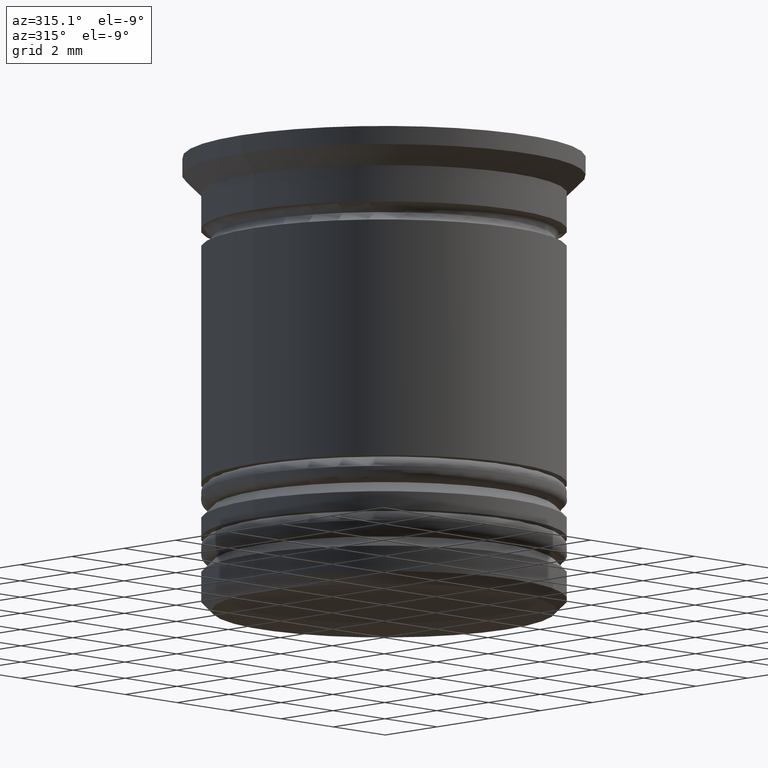
[diagram: clean part render]
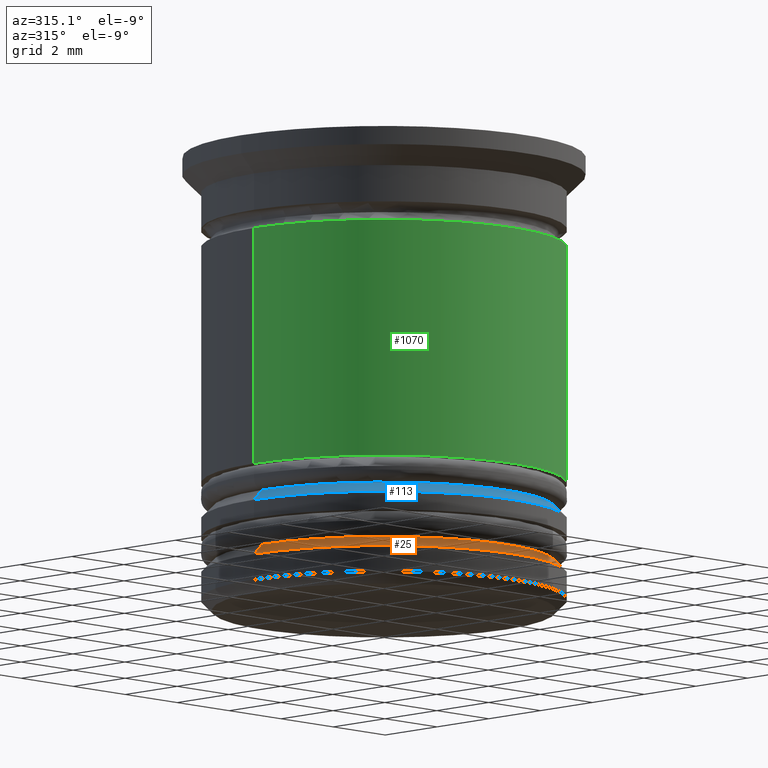
[diagram: same view with three faces highlighted in distinct colors, each labeled with its STEP entity id]
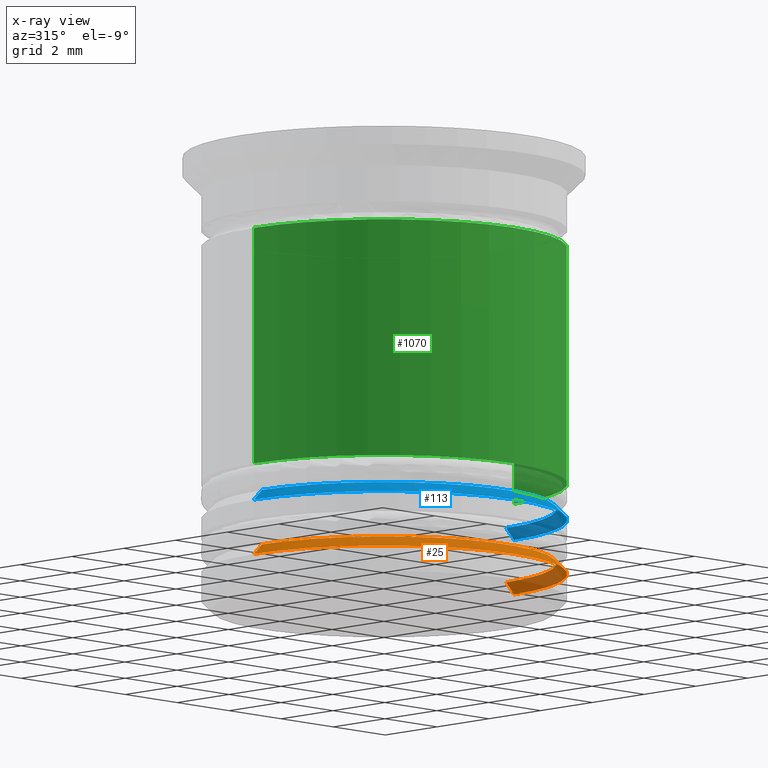
[diagram: x-ray of the same camera — body ghosted, the three highlighted faces saturated]
A machine part, auxiliary view with three faces highlighted in distinct colors.
The next image is the same camera in x-ray (body ghosted, the three faces saturated) — at least one of them is partly hidden behind the body in this view.
Their STEP definitions:

[orange] entity #25 — the highlighted conical surface has half-angle 45 deg.
#25 = ADVANCED_FACE ( 'NONE', ( #674 ), #1564, .T. ) ;
#48 = CARTESIAN_POINT ( 'NONE',  ( -4.700000000000001066, 5.755839955992560641E-16, -11.20000000000000817 ) ) ;
#49 = VERTEX_POINT ( 'NONE', #980 ) ;
#80 = CARTESIAN_POINT ( 'NONE',  ( 4.700000000000001066, 0.000000000000000000, -11.20000000000000817 ) ) ;
#92 = CARTESIAN_POINT ( 'NONE',  ( 4.499999999999992006, 5.510910596163078709E-16, -11.00000000000000178 ) ) ;
#95 = EDGE_CURVE ( 'NONE', #659, #49, #705, .T. ) ;
#129 = LINE ( 'NONE', #92, #1753 ) ;
#257 = EDGE_CURVE ( 'NONE', #659, #1270, #1630, .T. ) ;
#277 = DIRECTION ( 'NONE',  ( 0.7071067811865512365, 8.659560562354978464E-17, -0.7071067811865439090 ) ) ;
#287 = DIRECTION ( 'NONE',  ( -1.000000000000000000, 0.000000000000000000, 0.000000000000000000 ) ) ;
#356 = EDGE_LOOP ( 'NONE', ( #1909, #1327, #462, #1624 ) ) ;
#375 = CARTESIAN_POINT ( 'NONE',  ( 0.000000000000000000, 0.000000000000000000, -11.00000000000000178 ) ) ;
#389 = DIRECTION ( 'NONE',  ( -0.000000000000000000, -0.000000000000000000, 1.000000000000000000 ) ) ;
#462 = ORIENTED_EDGE ( 'NONE', *, *, #95, .T. ) ;
#532 = VECTOR ( 'NONE', #1662, 1000.000000000000000 ) ;
#659 = VERTEX_POINT ( 'NONE', #48 ) ;
#674 = FACE_OUTER_BOUND ( 'NONE', #356, .T. ) ;
#705 = LINE ( 'NONE', #837, #532 ) ;
#837 = CARTESIAN_POINT ( 'NONE',  ( -4.499999999999992006, 0.000000000000000000, -11.00000000000000178 ) ) ;
#845 = DIRECTION ( 'NONE',  ( 0.000000000000000000, 0.000000000000000000, -1.000000000000000000 ) ) ;
#853 = AXIS2_PLACEMENT_3D ( 'NONE', #375, #845, #963 ) ;
#963 = DIRECTION ( 'NONE',  ( -1.000000000000000000, 0.000000000000000000, 0.000000000000000000 ) ) ;
#980 = CARTESIAN_POINT ( 'NONE',  ( -5.000000000000000888, 6.123233995736767268E-16, -11.50000000000000533 ) ) ;
#1074 = DIRECTION ( 'NONE',  ( 0.000000000000000000, 0.000000000000000000, -1.000000000000000000 ) ) ;
#1099 = AXIS2_PLACEMENT_3D ( 'NONE', #1941, #389, #1137 ) ;
#1137 = DIRECTION ( 'NONE',  ( -1.000000000000000000, 0.000000000000000000, 0.000000000000000000 ) ) ;
#1270 = VERTEX_POINT ( 'NONE', #80 ) ;
#1327 = ORIENTED_EDGE ( 'NONE', *, *, #257, .F. ) ;
#1361 = CARTESIAN_POINT ( 'NONE',  ( 0.000000000000000000, 0.000000000000000000, -11.50000000000000533 ) ) ;
#1379 = EDGE_CURVE ( 'NONE', #1801, #49, #1919, .T. ) ;
#1385 = CARTESIAN_POINT ( 'NONE',  ( 5.000000000000000888, 0.000000000000000000, -11.50000000000000533 ) ) ;
#1432 = EDGE_CURVE ( 'NONE', #1270, #1801, #129, .T. ) ;
#1540 = AXIS2_PLACEMENT_3D ( 'NONE', #1361, #1074, #287 ) ;
#1564 = CONICAL_SURFACE ( 'NONE', #853, 4.499999999999992006, 0.7853981633974533860 ) ;
#1624 = ORIENTED_EDGE ( 'NONE', *, *, #1379, .F. ) ;
#1630 = CIRCLE ( 'NONE', #1099, 4.700000000000001066 ) ;
#1662 = DIRECTION ( 'NONE',  ( -0.7071067811865512365, 0.000000000000000000, -0.7071067811865439090 ) ) ;
#1753 = VECTOR ( 'NONE', #277, 1000.000000000000000 ) ;
#1801 = VERTEX_POINT ( 'NONE', #1385 ) ;
#1909 = ORIENTED_EDGE ( 'NONE', *, *, #1432, .F. ) ;
#1919 = CIRCLE ( 'NONE', #1540, 5.000000000000000888 ) ;
#1941 = CARTESIAN_POINT ( 'NONE',  ( 0.000000000000000000, 0.000000000000000000, -11.20000000000000817 ) ) ;

[blue] entity #113 — the highlighted conical surface has half-angle 45 deg.
#20 = LINE ( 'NONE', #147, #1068 ) ;
#52 = CARTESIAN_POINT ( 'NONE',  ( 5.000000000000000888, 0.000000000000000000, -10.00000000000000533 ) ) ;
#65 = EDGE_CURVE ( 'NONE', #295, #2065, #1021, .T. ) ;
#85 = VERTEX_POINT ( 'NONE', #692 ) ;
#113 = ADVANCED_FACE ( 'NONE', ( #524 ), #1156, .T. ) ;
#118 = ORIENTED_EDGE ( 'NONE', *, *, #791, .T. ) ;
#145 = AXIS2_PLACEMENT_3D ( 'NONE', #1637, #1484, #219 ) ;
#147 = CARTESIAN_POINT ( 'NONE',  ( -4.499999999999992006, 0.000000000000000000, -9.500000000000001776 ) ) ;
#202 = DIRECTION ( 'NONE',  ( -1.000000000000000000, 0.000000000000000000, 0.000000000000000000 ) ) ;
#219 = DIRECTION ( 'NONE',  ( -1.000000000000000000, 0.000000000000000000, 0.000000000000000000 ) ) ;
#283 = DIRECTION ( 'NONE',  ( 0.7071067811865512365, 8.659560562354978464E-17, -0.7071067811865439090 ) ) ;
#295 = VERTEX_POINT ( 'NONE', #52 ) ;
#366 = CARTESIAN_POINT ( 'NONE',  ( 0.000000000000000000, 0.000000000000000000, -9.500000000000001776 ) ) ;
#445 = LINE ( 'NONE', #555, #1594 ) ;
#524 = FACE_OUTER_BOUND ( 'NONE', #1238, .T. ) ;
#555 = CARTESIAN_POINT ( 'NONE',  ( 4.499999999999992006, 5.510910596163078709E-16, -9.500000000000001776 ) ) ;
#633 = ORIENTED_EDGE ( 'NONE', *, *, #65, .F. ) ;
#692 = CARTESIAN_POINT ( 'NONE',  ( 4.700000000000001066, 0.000000000000000000, -9.700000000000008171 ) ) ;
#717 = CARTESIAN_POINT ( 'NONE',  ( -4.700000000000001066, 5.755839955992560641E-16, -9.700000000000008171 ) ) ;
#783 = AXIS2_PLACEMENT_3D ( 'NONE', #366, #1621, #202 ) ;
#791 = EDGE_CURVE ( 'NONE', #1681, #2065, #20, .T. ) ;
#912 = DIRECTION ( 'NONE',  ( -0.000000000000000000, -0.000000000000000000, 1.000000000000000000 ) ) ;
#917 = ORIENTED_EDGE ( 'NONE', *, *, #1044, .F. ) ;
#1021 = CIRCLE ( 'NONE', #145, 5.000000000000000888 ) ;
#1044 = EDGE_CURVE ( 'NONE', #85, #295, #445, .T. ) ;
#1068 = VECTOR ( 'NONE', #1746, 1000.000000000000000 ) ;
#1069 = AXIS2_PLACEMENT_3D ( 'NONE', #1873, #912, #1545 ) ;
#1156 = CONICAL_SURFACE ( 'NONE', #783, 4.499999999999992006, 0.7853981633974533860 ) ;
#1238 = EDGE_LOOP ( 'NONE', ( #917, #1556, #118, #633 ) ) ;
#1311 = EDGE_CURVE ( 'NONE', #1681, #85, #1993, .T. ) ;
#1484 = DIRECTION ( 'NONE',  ( 0.000000000000000000, 0.000000000000000000, -1.000000000000000000 ) ) ;
#1545 = DIRECTION ( 'NONE',  ( -1.000000000000000000, 0.000000000000000000, 0.000000000000000000 ) ) ;
#1556 = ORIENTED_EDGE ( 'NONE', *, *, #1311, .F. ) ;
#1594 = VECTOR ( 'NONE', #283, 1000.000000000000000 ) ;
#1621 = DIRECTION ( 'NONE',  ( 0.000000000000000000, 0.000000000000000000, -1.000000000000000000 ) ) ;
#1637 = CARTESIAN_POINT ( 'NONE',  ( 0.000000000000000000, 0.000000000000000000, -10.00000000000000533 ) ) ;
#1681 = VERTEX_POINT ( 'NONE', #717 ) ;
#1746 = DIRECTION ( 'NONE',  ( -0.7071067811865512365, 0.000000000000000000, -0.7071067811865439090 ) ) ;
#1873 = CARTESIAN_POINT ( 'NONE',  ( 0.000000000000000000, 0.000000000000000000, -9.700000000000008171 ) ) ;
#1922 = CARTESIAN_POINT ( 'NONE',  ( -5.000000000000000888, 6.123233995736767268E-16, -10.00000000000000533 ) ) ;
#1993 = CIRCLE ( 'NONE', #1069, 4.700000000000001066 ) ;
#2065 = VERTEX_POINT ( 'NONE', #1922 ) ;

[green] entity #1070 — the highlighted cylindrical surface (partial cylindrical patch) has radius 5 mm, axis along (-0, -0, 1).
#96 = DIRECTION ( 'NONE',  ( 1.000000000000000000, 0.000000000000000000, 0.000000000000000000 ) ) ;
#99 = DIRECTION ( 'NONE',  ( -0.000000000000000000, -0.000000000000000000, 1.000000000000000000 ) ) ;
#103 = ORIENTED_EDGE ( 'NONE', *, *, #1996, .F. ) ;
#229 = CARTESIAN_POINT ( 'NONE',  ( 4.999999999999999112, 0.000000000000000000, -2.500000000000000000 ) ) ;
#496 = DIRECTION ( 'NONE',  ( -0.000000000000000000, -0.000000000000000000, 1.000000000000000000 ) ) ;
#525 = EDGE_CURVE ( 'NONE', #1643, #933, #1269, .T. ) ;
#623 = CARTESIAN_POINT ( 'NONE',  ( -4.999999999999999112, 6.123233995736766282E-16, -2.500000000000000000 ) ) ;
#636 = DIRECTION ( 'NONE',  ( -0.000000000000000000, -0.000000000000000000, 1.000000000000000000 ) ) ;
#808 = VERTEX_POINT ( 'NONE', #623 ) ;
#833 = EDGE_CURVE ( 'NONE', #1772, #1643, #1457, .T. ) ;
#850 = DIRECTION ( 'NONE',  ( -0.000000000000000000, -0.000000000000000000, 1.000000000000000000 ) ) ;
#864 = CARTESIAN_POINT ( 'NONE',  ( 0.000000000000000000, 0.000000000000000000, -2.500000000000000000 ) ) ;
#867 = FACE_OUTER_BOUND ( 'NONE', #1136, .T. ) ;
#926 = AXIS2_PLACEMENT_3D ( 'NONE', #1522, #99, #2027 ) ;
#933 = VERTEX_POINT ( 'NONE', #229 ) ;
#1036 = CYLINDRICAL_SURFACE ( 'NONE', #926, 5.000000000000000000 ) ;
#1039 = LINE ( 'NONE', #1692, #1134 ) ;
#1070 = ADVANCED_FACE ( 'NONE', ( #867 ), #1036, .T. ) ;
#1077 = ORIENTED_EDGE ( 'NONE', *, *, #1101, .F. ) ;
#1093 = VECTOR ( 'NONE', #496, 1000.000000000000000 ) ;
#1101 = EDGE_CURVE ( 'NONE', #808, #933, #1676, .T. ) ;
#1128 = AXIS2_PLACEMENT_3D ( 'NONE', #864, #850, #96 ) ;
#1134 = VECTOR ( 'NONE', #636, 1000.000000000000000 ) ;
#1136 = EDGE_LOOP ( 'NONE', ( #103, #1720, #1935, #1077 ) ) ;
#1269 = LINE ( 'NONE', #1934, #1093 ) ;
#1322 = AXIS2_PLACEMENT_3D ( 'NONE', #2078, #1905, #2084 ) ;
#1328 = CARTESIAN_POINT ( 'NONE',  ( 5.000000000000000888, 0.000000000000000000, -9.000000000000001776 ) ) ;
#1457 = CIRCLE ( 'NONE', #1322, 5.000000000000000888 ) ;
#1522 = CARTESIAN_POINT ( 'NONE',  ( 0.000000000000000000, 0.000000000000000000, 0.000000000000000000 ) ) ;
#1643 = VERTEX_POINT ( 'NONE', #1328 ) ;
#1676 = CIRCLE ( 'NONE', #1128, 4.999999999999999112 ) ;
#1692 = CARTESIAN_POINT ( 'NONE',  ( -5.000000000000000000, 6.123233995736766282E-16, 0.000000000000000000 ) ) ;
#1720 = ORIENTED_EDGE ( 'NONE', *, *, #833, .T. ) ;
#1742 = CARTESIAN_POINT ( 'NONE',  ( -5.000000000000000888, 6.123233995736767268E-16, -9.000000000000001776 ) ) ;
#1772 = VERTEX_POINT ( 'NONE', #1742 ) ;
#1905 = DIRECTION ( 'NONE',  ( -0.000000000000000000, -0.000000000000000000, 1.000000000000000000 ) ) ;
#1934 = CARTESIAN_POINT ( 'NONE',  ( 5.000000000000000000, 0.000000000000000000, 0.000000000000000000 ) ) ;
#1935 = ORIENTED_EDGE ( 'NONE', *, *, #525, .T. ) ;
#1996 = EDGE_CURVE ( 'NONE', #1772, #808, #1039, .T. ) ;
#2027 = DIRECTION ( 'NONE',  ( 1.000000000000000000, 0.000000000000000000, 0.000000000000000000 ) ) ;
#2078 = CARTESIAN_POINT ( 'NONE',  ( 0.000000000000000000, 0.000000000000000000, -9.000000000000001776 ) ) ;
#2084 = DIRECTION ( 'NONE',  ( 1.000000000000000000, 0.000000000000000000, 0.000000000000000000 ) ) ;